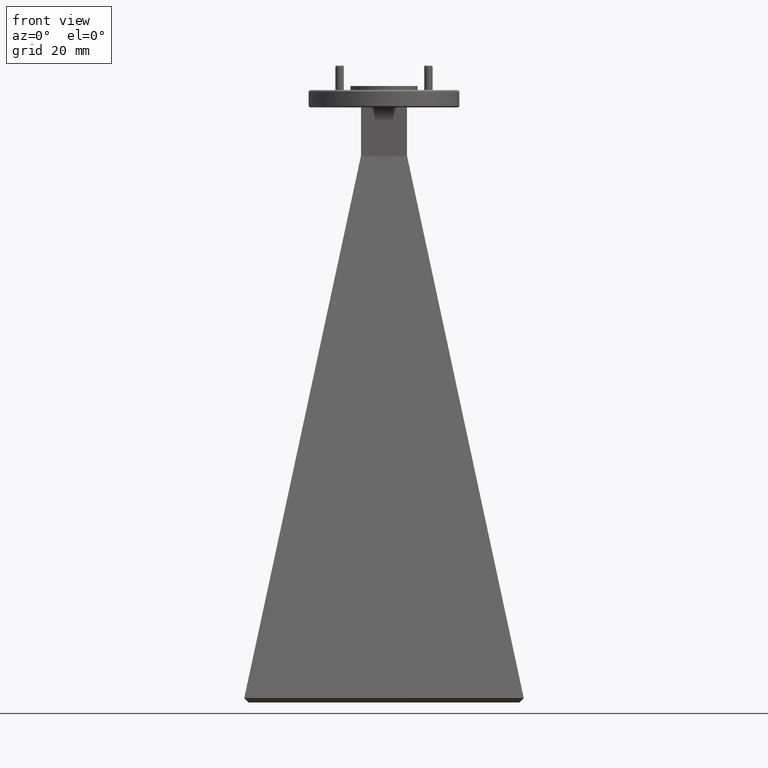
[diagram: clean part render]
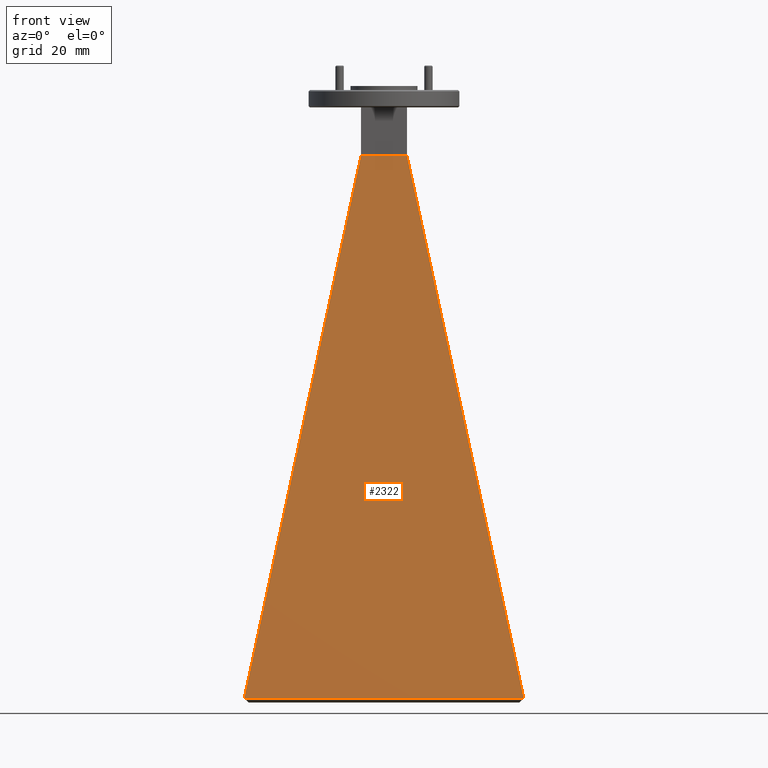
[diagram: same view with one face highlighted and labeled with its STEP entity id]
A machine part, front view. The second image highlights one B-rep face of the part: STEP entity #2322.
In plain terms, the highlighted planar face has unit normal (0, -0.9842, 0.1771).
Its self-contained STEP definition (entity closure, byte-faithful):
#93 = ORIENTED_EDGE ( 'NONE', *, *, #2254, .F. ) ;
#99 = DIRECTION ( 'NONE',  ( 0.0000000000000000000, -0.9841925775698360200, 0.1771015817446088500 ) ) ;
#165 = LINE ( 'NONE', #1307, #1140 ) ;
#239 = LINE ( 'NONE', #1487, #573 ) ;
#258 = DIRECTION ( 'NONE',  ( -1.000000000000000000, -0.0000000000000000000, -0.0000000000000000000 ) ) ;
#262 = CARTESIAN_POINT ( 'NONE',  ( 0.0000000000000000000, -0.02137598696675555700, 0.003846524744691977800 ) ) ;
#278 = DIRECTION ( 'NONE',  ( 0.0000000000000000000, -0.1771015817446088300, -0.9841925775698359100 ) ) ;
#404 = DIRECTION ( 'NONE',  ( 0.2072468437529432800, 0.1732564730235312500, 0.9628244597588333500 ) ) ;
#408 = VECTOR ( 'NONE', #1600, 39.37007874015748100 ) ;
#450 = CARTESIAN_POINT ( 'NONE',  ( -0.1719999999999997100, -0.1159999999999995900, -0.5219999999999963600 ) ) ;
#490 = AXIS2_PLACEMENT_3D ( 'NONE', #262, #99, #278 ) ;
#573 = VECTOR ( 'NONE', #258, 39.37007874015748100 ) ;
#866 = DIRECTION ( 'NONE',  ( 1.000000000000000000, 0.0000000000000000000, 0.0000000000000000000 ) ) ;
#898 = CARTESIAN_POINT ( 'NONE',  ( 0.1719999999999996000, -0.1159999999999996300, -0.5219999999999963600 ) ) ;
#1037 = ORIENTED_EDGE ( 'NONE', *, *, #1456, .T. ) ;
#1090 = LINE ( 'NONE', #1226, #408 ) ;
#1100 = ORIENTED_EDGE ( 'NONE', *, *, #1693, .T. ) ;
#1140 = VECTOR ( 'NONE', #404, 39.37007874015748100 ) ;
#1141 = EDGE_CURVE ( 'NONE', #1690, #2079, #1090, .T. ) ;
#1171 = PLANE ( 'NONE',  #490 ) ;
#1226 = CARTESIAN_POINT ( 'NONE',  ( 1.050000000000000000, -0.8499999999999998700, -4.601000000000000000 ) ) ;
#1307 = CARTESIAN_POINT ( 'NONE',  ( -1.050000000000000000, -0.8500000000000000900, -4.601000000000000000 ) ) ;
#1377 = LINE ( 'NONE', #1963, #1733 ) ;
#1456 = EDGE_CURVE ( 'NONE', #1667, #1690, #1377, .T. ) ;
#1487 = CARTESIAN_POINT ( 'NONE',  ( 0.0000000000000000000, -0.1159999999999999500, -0.5220000000000001300 ) ) ;
#1600 = DIRECTION ( 'NONE',  ( -0.2072468437529433900, 0.1732564730235311700, 0.9628244597588333500 ) ) ;
#1667 = VERTEX_POINT ( 'NONE', #2179 ) ;
#1690 = VERTEX_POINT ( 'NONE', #1867 ) ;
#1693 = EDGE_CURVE ( 'NONE', #2079, #1851, #239, .T. ) ;
#1733 = VECTOR ( 'NONE', #866, 39.37007874015748100 ) ;
#1833 = EDGE_LOOP ( 'NONE', ( #93, #1037, #1929, #1100 ) ) ;
#1851 = VERTEX_POINT ( 'NONE', #450 ) ;
#1867 = CARTESIAN_POINT ( 'NONE',  ( 1.042703095782256500, -0.8438998545605650400, -4.567100145439435500 ) ) ;
#1915 = FACE_OUTER_BOUND ( 'NONE', #1833, .T. ) ;
#1929 = ORIENTED_EDGE ( 'NONE', *, *, #1141, .T. ) ;
#1963 = CARTESIAN_POINT ( 'NONE',  ( 0.0000000000000000000, -0.8438998545605649300, -4.567100145439435500 ) ) ;
#2079 = VERTEX_POINT ( 'NONE', #898 ) ;
#2179 = CARTESIAN_POINT ( 'NONE',  ( -1.042703095782256500, -0.8438998545605653800, -4.567100145439435500 ) ) ;
#2254 = EDGE_CURVE ( 'NONE', #1667, #1851, #165, .T. ) ;
#2322 = ADVANCED_FACE ( 'NONE', ( #1915 ), #1171, .T. ) ;